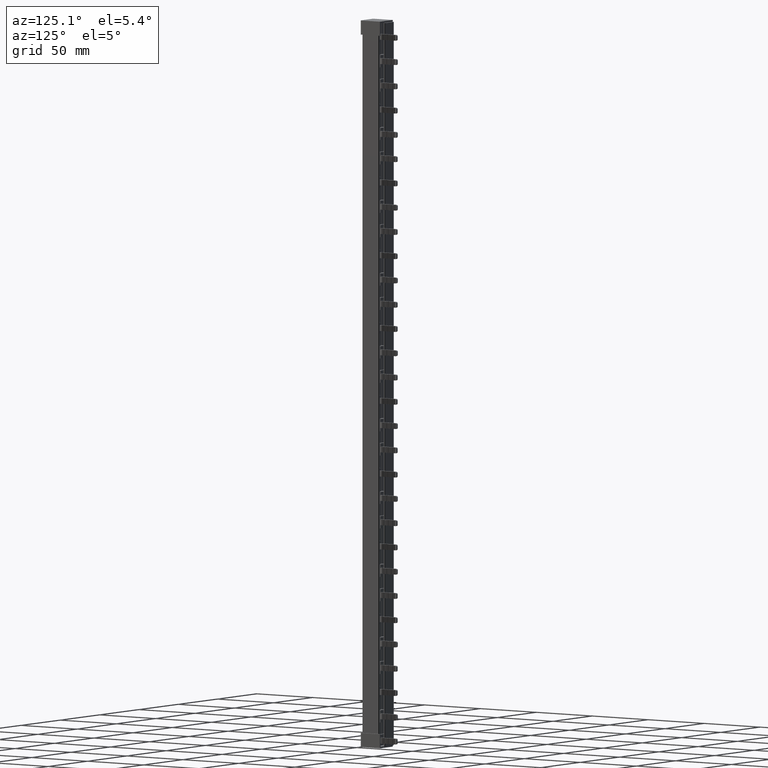
[diagram: clean part render]
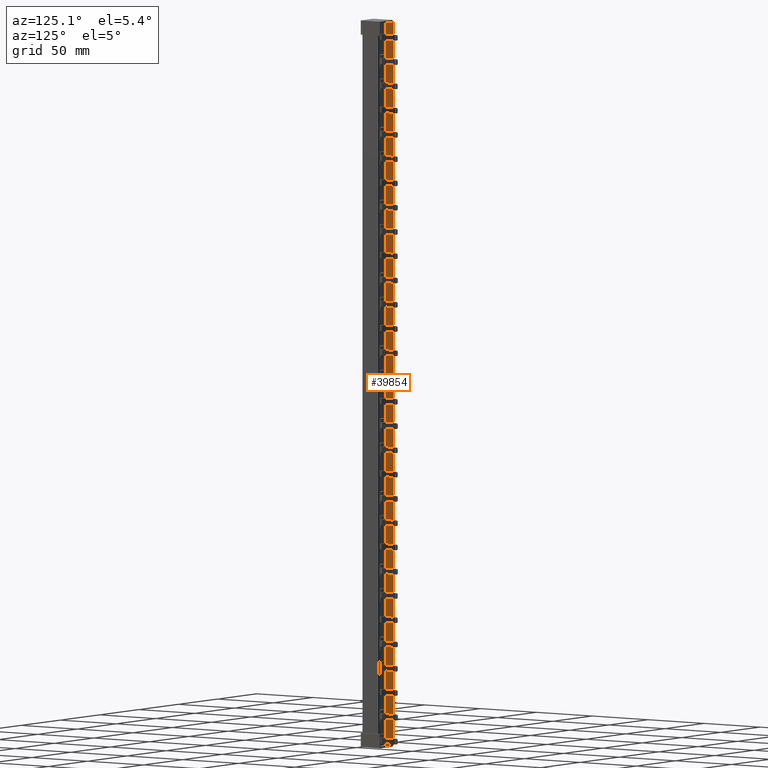
[diagram: same view with one face highlighted and labeled with its STEP entity id]
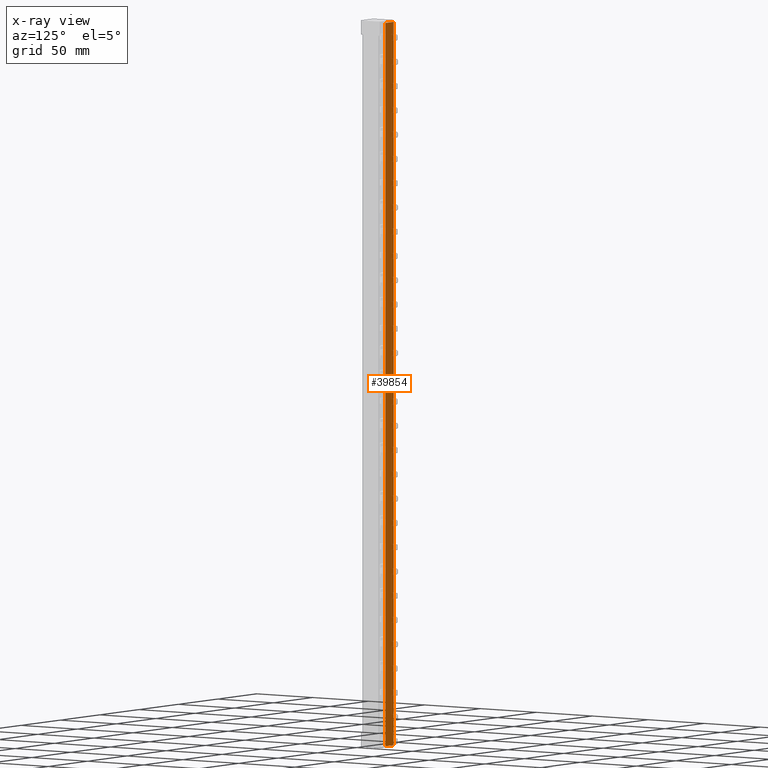
[diagram: x-ray of the same camera — body ghosted, the highlighted face saturated]
A machine part, auxiliary view. The second image highlights one B-rep face of the part: STEP entity #39854.
The next image is the same camera in x-ray: the body ghosted, the highlighted face saturated — about 0% of this face is hidden behind the body in this view.
In plain terms, the highlighted planar face has unit normal (0, 1, 0).
Its self-contained STEP definition (entity closure, byte-faithful):
#11945 = AXIS2_PLACEMENT_3D ( 'NONE', #23489, #23566, #23576 ) ;
#15655 = EDGE_CURVE ( 'NONE', #36557, #36458, #28250, .T. ) ;
#15762 = EDGE_CURVE ( 'NONE', #36605, #36568, #16590, .T. ) ;
#15919 = EDGE_CURVE ( 'NONE', #36605, #36458, #17577, .T. ) ;
#15932 = EDGE_CURVE ( 'NONE', #36568, #36557, #17610, .T. ) ;
#16590 = LINE ( 'NONE', #16600, #48622 ) ;
#16600 = CARTESIAN_POINT ( 'NONE',  ( 6.525356090326534200, 18.30000000000001800, 217.7999999999999800 ) ) ;
#16601 = DIRECTION ( 'NONE',  ( 1.000000000000000000, 0.0000000000000000000, -0.0000000000000000000 ) ) ;
#17513 = DIRECTION ( 'NONE',  ( -0.0000000000000000000, 0.0000000000000000000, -1.000000000000000000 ) ) ;
#17577 = LINE ( 'NONE', #17633, #47597 ) ;
#17585 = DIRECTION ( 'NONE',  ( -0.0000000000000000000, -0.0000000000000000000, -1.000000000000000000 ) ) ;
#17610 = LINE ( 'NONE', #17612, #47552 ) ;
#17612 = CARTESIAN_POINT ( 'NONE',  ( 10.36723328473354600, 18.30000000000001800, 217.7999999999999800 ) ) ;
#17633 = CARTESIAN_POINT ( 'NONE',  ( -0.1240000000000000000, 18.30000000000001500, 217.7999999999999800 ) ) ;
#23489 = CARTESIAN_POINT ( 'NONE',  ( 6.525356090326534200, 18.30000000000001800, 217.7999999999999800 ) ) ;
#23501 = PLANE ( 'NONE',  #11945 ) ;
#23545 = FACE_OUTER_BOUND ( 'NONE', #53766, .T. ) ;
#23566 = DIRECTION ( 'NONE',  ( 0.0000000000000000000, 1.000000000000000000, 0.0000000000000000000 ) ) ;
#23576 = DIRECTION ( 'NONE',  ( 0.0000000000000000000, -0.0000000000000000000, 1.000000000000000000 ) ) ;
#28182 = DIRECTION ( 'NONE',  ( -1.000000000000000000, -0.0000000000000000000, 0.0000000000000000000 ) ) ;
#28212 = CARTESIAN_POINT ( 'NONE',  ( 6.525356090326534200, 18.30000000000001800, -313.8000000000000700 ) ) ;
#28250 = LINE ( 'NONE', #28212, #37827 ) ;
#32002 = ORIENTED_EDGE ( 'NONE', *, *, #15919, .F. ) ;
#32125 = ORIENTED_EDGE ( 'NONE', *, *, #15655, .T. ) ;
#32169 = ORIENTED_EDGE ( 'NONE', *, *, #15932, .T. ) ;
#32188 = ORIENTED_EDGE ( 'NONE', *, *, #15762, .T. ) ;
#36458 = VERTEX_POINT ( 'NONE', #58659 ) ;
#36557 = VERTEX_POINT ( 'NONE', #58653 ) ;
#36568 = VERTEX_POINT ( 'NONE', #58777 ) ;
#36605 = VERTEX_POINT ( 'NONE', #58762 ) ;
#37827 = VECTOR ( 'NONE', #28182, 1000.000000000000000 ) ;
#39854 = ADVANCED_FACE ( 'NONE', ( #23545 ), #23501, .T. ) ;
#47552 = VECTOR ( 'NONE', #17513, 1000.000000000000000 ) ;
#47597 = VECTOR ( 'NONE', #17585, 1000.000000000000000 ) ;
#48622 = VECTOR ( 'NONE', #16601, 1000.000000000000000 ) ;
#53766 = EDGE_LOOP ( 'NONE', ( #32169, #32125, #32002, #32188 ) ) ;
#58653 = CARTESIAN_POINT ( 'NONE',  ( 10.36723328473354600, 18.30000000000001800, -313.8000000000000700 ) ) ;
#58659 = CARTESIAN_POINT ( 'NONE',  ( -0.1239999999999999700, 18.30000000000001800, -313.8000000000000700 ) ) ;
#58762 = CARTESIAN_POINT ( 'NONE',  ( -0.1239999999999999700, 18.30000000000001800, 217.7999999999999800 ) ) ;
#58777 = CARTESIAN_POINT ( 'NONE',  ( 10.36723328473354600, 18.30000000000001800, 217.8000000000000100 ) ) ;